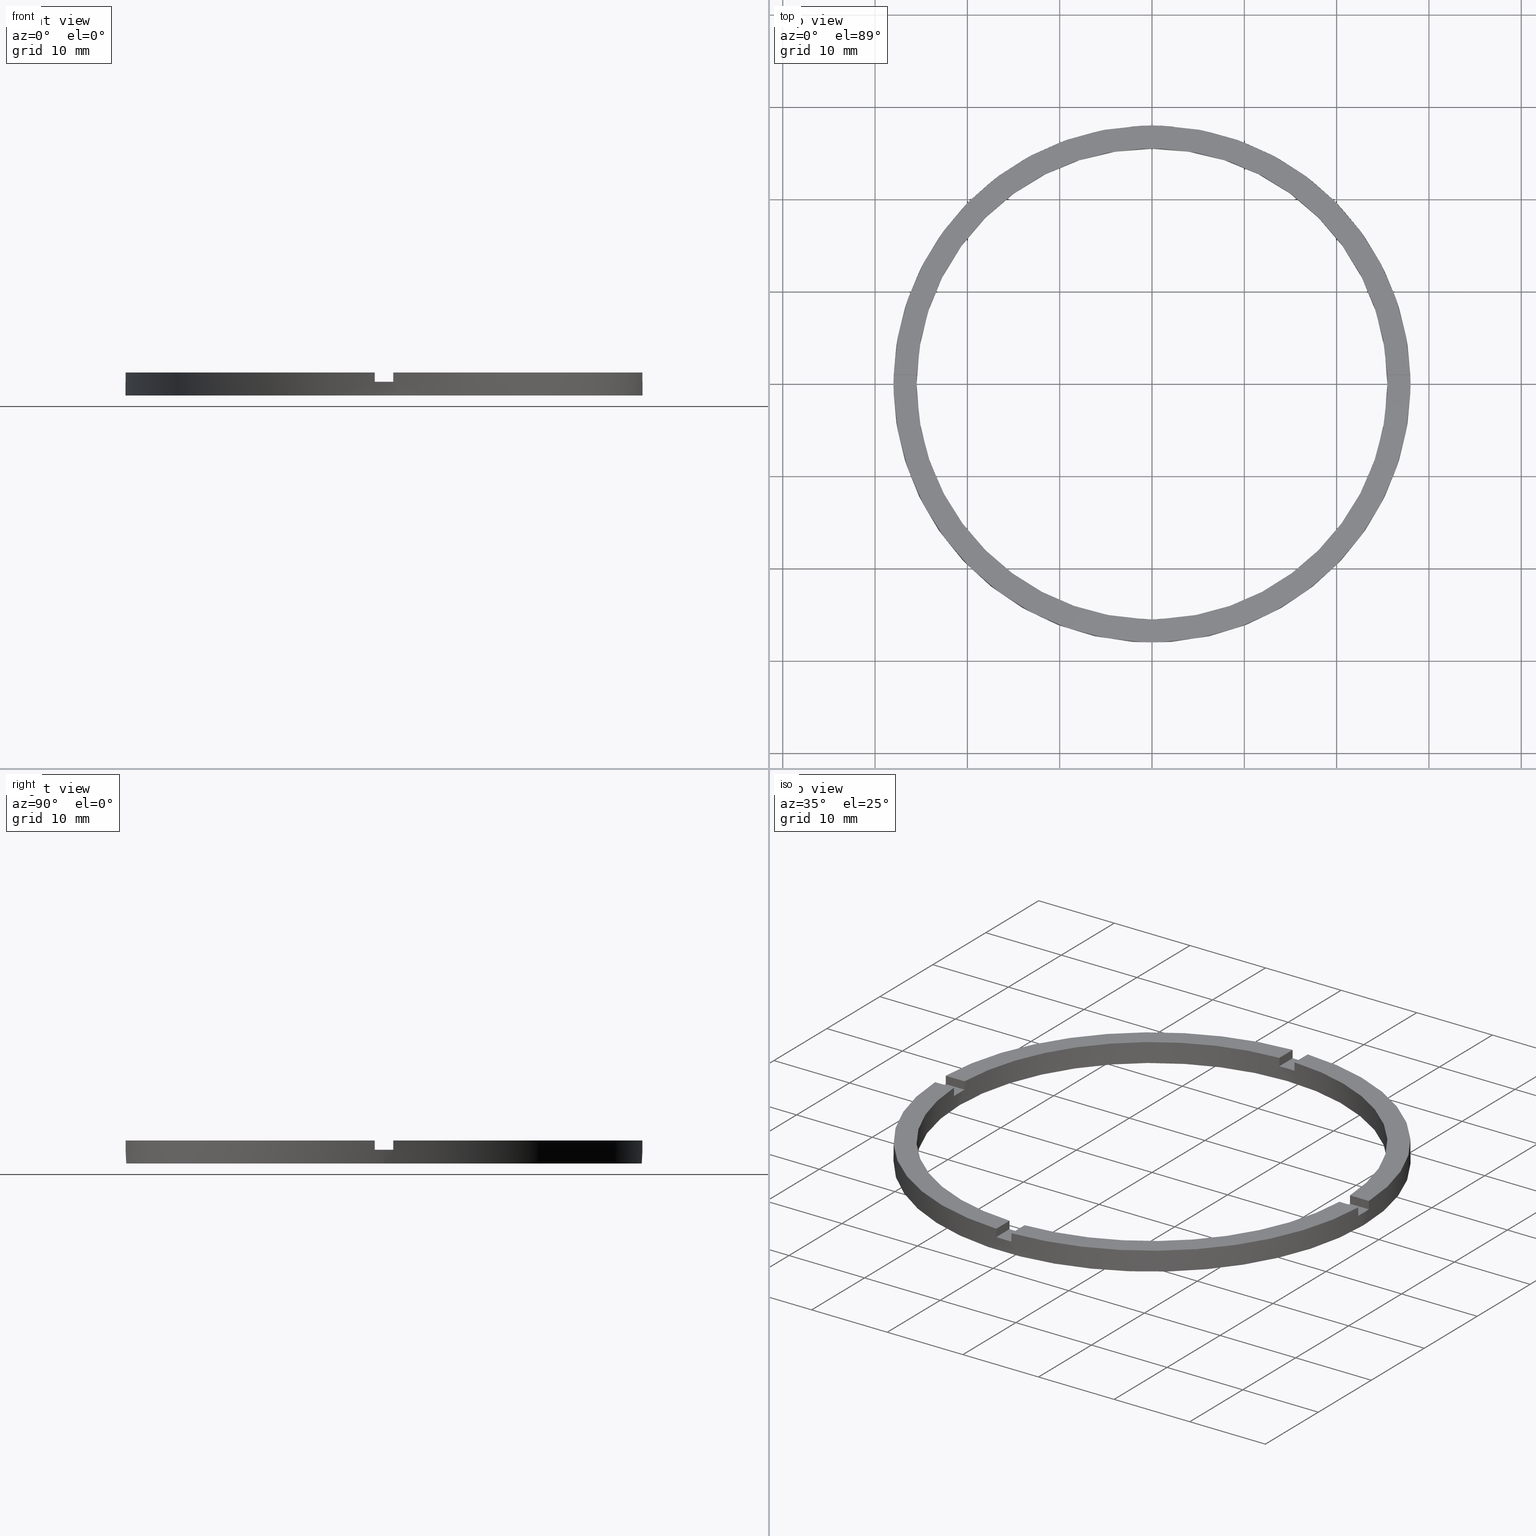
[diagram: canonical four-view strip — front | top / right | iso, engineering-drawing reading convention]
A machine part, canonical four-view strip (front | top / right | iso — engineering-drawing reading convention). The complete STEP part file that produces these views, byte-faithful:
ISO-10303-21;
HEADER;
FILE_DESCRIPTION (( 'STEP AP203' ),
    '1' );
FILE_NAME ('514117.step',
    '2024-12-26T02:39:08',
    ( 'MSI' ),
    ( '' ),
    'SwSTEP 2.0',
    'SolidWorks 2020',
    '' );
FILE_SCHEMA (( 'CONFIG_CONTROL_DESIGN' ));
ENDSEC;

DATA;
#1 = CC_DESIGN_PERSON_AND_ORGANIZATION_ASSIGNMENT ( #137, #215, ( #351 ) ) ;
#2 = DIRECTION ( 'NONE',  ( 1.000000000000000000, 0.000000000000000000, 0.000000000000000000 ) ) ;
#3 = EDGE_CURVE ( 'NONE', #620, #84, #571, .T. ) ;
#4 = DIRECTION ( 'NONE',  ( 0.000000000000000000, 1.000000000000000000, 0.000000000000000000 ) ) ;
#5 = CARTESIAN_POINT ( 'NONE',  ( -27.98213715926644696, 0.9999999999999731326, 2.500000000000000000 ) ) ;
#6 = PLANE ( 'NONE',  #172 ) ;
#7 = AXIS2_PLACEMENT_3D ( 'NONE', #290, #186, #195 ) ;
#8 = DIRECTION ( 'NONE',  ( 0.000000000000000000, 1.000000000000000000, 0.000000000000000000 ) ) ;
#9 = DIRECTION ( 'NONE',  ( -0.000000000000000000, 0.000000000000000000, 1.000000000000000000 ) ) ;
#10 = ADVANCED_FACE ( 'NONE', ( #337 ), #433, .T. ) ;
#11 = EDGE_CURVE ( 'NONE', #214, #712, #58, .T. ) ;
#12 = DIRECTION ( 'NONE',  ( -0.000000000000000000, -0.000000000000000000, -1.000000000000000000 ) ) ;
#13 = EDGE_CURVE ( 'NONE', #371, #772, #80, .T. ) ;
#14 = DIRECTION ( 'NONE',  ( -1.000000000000000000, -4.336808689942018352E-17, -0.000000000000000000 ) ) ;
#15 = PLANE ( 'NONE',  #416 ) ;
#16 = PERSON_AND_ORGANIZATION_ROLE ( 'design_owner' ) ;
#17 = AXIS2_PLACEMENT_3D ( 'NONE', #37, #367, #724 ) ;
#18 = PLANE ( 'NONE',  #514 ) ;
#19 = ADVANCED_FACE ( 'NONE', ( #332 ), #557, .T. ) ;
#20 = CARTESIAN_POINT ( 'NONE',  ( 0.000000000000000000, 0.000000000000000000, 2.500000000000000000 ) ) ;
#21 = EDGE_CURVE ( 'NONE', #576, #712, #593, .T. ) ;
#22 = PLANE ( 'NONE',  #756 ) ;
#23 = AXIS2_PLACEMENT_3D ( 'NONE', #402, #468, #116 ) ;
#24 = CC_DESIGN_DATE_AND_TIME_ASSIGNMENT ( #405, #330, ( #351 ) ) ;
#25 = DESIGN_CONTEXT ( 'detailed design', #645, 'design' ) ;
#26 = EDGE_CURVE ( 'NONE', #631, #749, #599, .T. ) ;
#27 = ADVANCED_FACE ( 'NONE', ( #340 ), #15, .T. ) ;
#28 = DIRECTION ( 'NONE',  ( -1.000000000000000000, 0.000000000000000000, 0.000000000000000000 ) ) ;
#29 = EDGE_CURVE ( 'NONE', #214, #211, #572, .T. ) ;
#30 = APPLICATION_PROTOCOL_DEFINITION ( 'international standard', 'config_control_design', 1994, #645 ) ;
#31 = DIRECTION ( 'NONE',  ( 1.000000000000000000, 0.000000000000000000, -0.000000000000000000 ) ) ;
#32 = EDGE_CURVE ( 'NONE', #334, #71, #336, .T. ) ;
#33 = AXIS2_PLACEMENT_3D ( 'NONE', #208, #392, #390 ) ;
#34 = CARTESIAN_POINT ( 'NONE',  ( 0.000000000000000000, 0.000000000000000000, 2.500000000000000000 ) ) ;
#35 = ORIENTED_EDGE ( 'NONE', *, *, #118, .F. ) ;
#36 = AXIS2_PLACEMENT_3D ( 'NONE', #399, #139, #763 ) ;
#37 = CARTESIAN_POINT ( 'NONE',  ( 0.000000000000000000, 0.000000000000000000, 0.000000000000000000 ) ) ;
#38 = CARTESIAN_POINT ( 'NONE',  ( -25.50000000000000000, 0.000000000000000000, 2.500000000000000000 ) ) ;
#39 = CARTESIAN_POINT ( 'NONE',  ( 25.48038461248181719, 0.9999999999998427924, 2.500000000000000000 ) ) ;
#40 = CARTESIAN_POINT ( 'NONE',  ( -18.00000000000018474, -1.000000000000025091, 2.500000000000000000 ) ) ;
#41 = CARTESIAN_POINT ( 'NONE',  ( 0.9999999999998389066, -18.00000000000018119, 1.500000000000000000 ) ) ;
#42 = CARTESIAN_POINT ( 'NONE',  ( 0.9999999999999735767, 25.48038461248181363, 1.500000000000000000 ) ) ;
#43 = CARTESIAN_POINT ( 'NONE',  ( -1.000000000000159872, -27.98213715926643985, 2.500000000000000000 ) ) ;
#44 = ORIENTED_EDGE ( 'NONE', *, *, #707, .F. ) ;
#45 = ORIENTED_EDGE ( 'NONE', *, *, #152, .T. ) ;
#46 = CARTESIAN_POINT ( 'NONE',  ( 0.000000000000000000, 0.000000000000000000, 2.500000000000000000 ) ) ;
#47 = DIRECTION ( 'NONE',  ( 0.000000000000000000, 0.000000000000000000, 1.000000000000000000 ) ) ;
#48 = AXIS2_PLACEMENT_3D ( 'NONE', #495, #649, #718 ) ;
#49 = VECTOR ( 'NONE', #564, 1000.000000000000000 ) ;
#50 = DIRECTION ( 'NONE',  ( 1.000000000000000000, 0.000000000000000000, 0.000000000000000000 ) ) ;
#51 = DIRECTION ( 'NONE',  ( 4.336808689942018352E-17, -1.000000000000000000, 0.000000000000000000 ) ) ;
#52 = ORIENTED_EDGE ( 'NONE', *, *, #29, .F. ) ;
#53 = EDGE_CURVE ( 'NONE', #474, #604, #588, .T. ) ;
#54 = VERTEX_POINT ( 'NONE', #112 ) ;
#55 = ORIENTED_EDGE ( 'NONE', *, *, #678, .F. ) ;
#56 = DIRECTION ( 'NONE',  ( 1.000000000000000000, 4.336808689942018352E-17, 0.000000000000000000 ) ) ;
#57 = ORIENTED_EDGE ( 'NONE', *, *, #26, .F. ) ;
#58 = CIRCLE ( 'NONE', #171, 25.50000000000000000 ) ;
#59 = PLANE ( 'NONE',  #700 ) ;
#60 = APPROVAL ( #704, 'δָ��' ) ;
#61 = CIRCLE ( 'NONE', #633, 28.00000000000000000 ) ;
#62 = ORIENTED_EDGE ( 'NONE', *, *, #431, .T. ) ;
#63 = VERTEX_POINT ( 'NONE', #360 ) ;
#64 = ORIENTED_EDGE ( 'NONE', *, *, #562, .T. ) ;
#65 = DIRECTION ( 'NONE',  ( 1.000000000000000000, 0.000000000000000000, 0.000000000000000000 ) ) ;
#66 = CIRCLE ( 'NONE', #212, 25.50000000000000000 ) ;
#67 = EDGE_LOOP ( 'NONE', ( #364, #73, #57, #192 ) ) ;
#68 = VERTEX_POINT ( 'NONE', #501 ) ;
#69 = VECTOR ( 'NONE', #739, 1000.000000000000000 ) ;
#70 = DIRECTION ( 'NONE',  ( 1.000000000000000000, 0.000000000000000000, -0.000000000000000000 ) ) ;
#71 = VERTEX_POINT ( 'NONE', #551 ) ;
#72 = LINE ( 'NONE', #388, #605 ) ;
#73 = ORIENTED_EDGE ( 'NONE', *, *, #562, .F. ) ;
#74 = EDGE_CURVE ( 'NONE', #334, #231, #76, .T. ) ;
#75 = VERTEX_POINT ( 'NONE', #408 ) ;
#76 = CIRCLE ( 'NONE', #295, 25.50000000000000000 ) ;
#77 = ORIENTED_EDGE ( 'NONE', *, *, #475, .T. ) ;
#78 = DIRECTION ( 'NONE',  ( -1.000000000000000000, -4.336808689942018352E-17, 0.000000000000000000 ) ) ;
#79 = VECTOR ( 'NONE', #623, 1000.000000000000000 ) ;
#80 = LINE ( 'NONE', #507, #348 ) ;
#81 = CIRCLE ( 'NONE', #349, 25.50000000000000000 ) ;
#82 = CARTESIAN_POINT ( 'NONE',  ( -1.000000000000026423, 25.48038461248181008, 2.500000000000000000 ) ) ;
#83 = APPROVAL_STATUS ( 'not_yet_approved' ) ;
#84 = VERTEX_POINT ( 'NONE', #5 ) ;
#85 = LINE ( 'NONE', #652, #341 ) ;
#86 = EDGE_CURVE ( 'NONE', #631, #604, #344, .T. ) ;
#87 = CIRCLE ( 'NONE', #535, 28.00000000000000000 ) ;
#88 = CARTESIAN_POINT ( 'NONE',  ( -18.00000000000018474, 0.9999999999999749090, 1.500000000000000000 ) ) ;
#89 = ORIENTED_EDGE ( 'NONE', *, *, #29, .T. ) ;
#90 = VECTOR ( 'NONE', #287, 1000.000000000000000 ) ;
#91 = ORIENTED_EDGE ( 'NONE', *, *, #773, .T. ) ;
#92 = CIRCLE ( 'NONE', #146, 28.00000000000000000 ) ;
#93 = DIRECTION ( 'NONE',  ( 0.000000000000000000, 0.000000000000000000, 1.000000000000000000 ) ) ;
#94 = ORIENTED_EDGE ( 'NONE', *, *, #525, .F. ) ;
#95 = VECTOR ( 'NONE', #115, 1000.000000000000000 ) ;
#96 = ORIENTED_EDGE ( 'NONE', *, *, #13, .F. ) ;
#97 = VERTEX_POINT ( 'NONE', #779 ) ;
#98 = ORIENTED_EDGE ( 'NONE', *, *, #319, .T. ) ;
#99 = ORIENTED_EDGE ( 'NONE', *, *, #74, .T. ) ;
#100 = ORIENTED_EDGE ( 'NONE', *, *, #460, .F. ) ;
#101 = ORIENTED_EDGE ( 'NONE', *, *, #775, .F. ) ;
#102 = DIRECTION ( 'NONE',  ( 1.000000000000000000, 0.000000000000000000, 0.000000000000000000 ) ) ;
#103 = AXIS2_PLACEMENT_3D ( 'NONE', #667, #752, #70 ) ;
#104 = AXIS2_PLACEMENT_3D ( 'NONE', #239, #280, #2 ) ;
#105 = ORIENTED_EDGE ( 'NONE', *, *, #188, .F. ) ;
#106 = ORIENTED_EDGE ( 'NONE', *, *, #319, .F. ) ;
#107 = EDGE_CURVE ( 'NONE', #182, #474, #85, .T. ) ;
#108 = VERTEX_POINT ( 'NONE', #249 ) ;
#109 = ORIENTED_EDGE ( 'NONE', *, *, #53, .T. ) ;
#110 = CARTESIAN_POINT ( 'NONE',  ( -1.000000000000026423, 18.00000000000000355, 2.500000000000000000 ) ) ;
#111 = DIRECTION ( 'NONE',  ( 1.000000000000000000, 0.000000000000000000, 0.000000000000000000 ) ) ;
#112 = CARTESIAN_POINT ( 'NONE',  ( -27.98213715926644340, -1.000000000000026867, 2.500000000000000000 ) ) ;
#113 = CARTESIAN_POINT ( 'NONE',  ( 25.48038461248181719, 0.9999999999998427924, 2.500000000000000000 ) ) ;
#114 = CARTESIAN_POINT ( 'NONE',  ( 0.000000000000000000, 0.000000000000000000, 2.500000000000000000 ) ) ;
#115 = DIRECTION ( 'NONE',  ( 1.000000000000000000, 1.734723475976807341E-16, -0.000000000000000000 ) ) ;
#116 = DIRECTION ( 'NONE',  ( -1.000000000000000000, 0.000000000000000000, 0.000000000000000000 ) ) ;
#117 = CARTESIAN_POINT ( 'NONE',  ( 0.9999999999999735767, 18.00000000000000355, 2.500000000000000000 ) ) ;
#118 = EDGE_CURVE ( 'NONE', #631, #576, #325, .T. ) ;
#119 = PLANE ( 'NONE',  #251 ) ;
#120 = DIRECTION ( 'NONE',  ( 1.000000000000000000, 1.734723475976807341E-16, -0.000000000000000000 ) ) ;
#121 = DIRECTION ( 'NONE',  ( 1.000000000000000000, -0.000000000000000000, 0.000000000000000000 ) ) ;
#122 = CARTESIAN_POINT ( 'NONE',  ( 27.98213715926645051, 0.9999999999998430145, 2.500000000000000000 ) ) ;
#123 = EDGE_CURVE ( 'NONE', #108, #457, #333, .T. ) ;
#124 = DIRECTION ( 'NONE',  ( -1.000000000000000000, -1.734723475976807341E-16, 0.000000000000000000 ) ) ;
#125 = LOCAL_TIME ( 10, 39, 8.000000000000000000, #135 ) ;
#126 = AXIS2_PLACEMENT_3D ( 'NONE', #657, #425, #510 ) ;
#127 = AXIS2_PLACEMENT_3D ( 'NONE', #46, #259, #261 ) ;
#128 = AXIS2_PLACEMENT_3D ( 'NONE', #301, #387, #432 ) ;
#129 = CARTESIAN_POINT ( 'NONE',  ( 0.000000000000000000, 0.000000000000000000, 2.500000000000000000 ) ) ;
#130 = CARTESIAN_POINT ( 'NONE',  ( 0.9999999999998389066, -18.00000000000018119, 2.500000000000000000 ) ) ;
#131 = COORDINATED_UNIVERSAL_TIME_OFFSET ( 8, 0, .AHEAD. ) ;
#132 = ADVANCED_FACE ( 'NONE', ( #609 ), #119, .F. ) ;
#133 = CARTESIAN_POINT ( 'NONE',  ( 0.9999999999998397948, -25.48038461248181719, 2.500000000000000000 ) ) ;
#134 = DIRECTION ( 'NONE',  ( -0.000000000000000000, -0.000000000000000000, -1.000000000000000000 ) ) ;
#135 = COORDINATED_UNIVERSAL_TIME_OFFSET ( 8, 0, .AHEAD. ) ;
#136 = EDGE_CURVE ( 'NONE', #75, #71, #590, .T. ) ;
#137 = PERSON_AND_ORGANIZATION ( #281, #473 ) ;
#138 = DATE_AND_TIME ( #407, #664 ) ;
#139 = DIRECTION ( 'NONE',  ( 0.000000000000000000, 0.000000000000000000, 1.000000000000000000 ) ) ;
#140 = CARTESIAN_POINT ( 'NONE',  ( -1.000000000000160316, -25.48038461248180653, 1.500000000000000000 ) ) ;
#141 = ADVANCED_FACE ( 'NONE', ( #595 ), #59, .F. ) ;
#142 = EDGE_CURVE ( 'NONE', #211, #772, #602, .T. ) ;
#143 = DIRECTION ( 'NONE',  ( -0.000000000000000000, -0.000000000000000000, -1.000000000000000000 ) ) ;
#144 = APPROVAL_PERSON_ORGANIZATION ( #663, #60, #270 ) ;
#145 = CARTESIAN_POINT ( 'NONE',  ( -25.48038461248181008, -1.000000000000026423, 2.500000000000000000 ) ) ;
#146 = AXIS2_PLACEMENT_3D ( 'NONE', #114, #245, #783 ) ;
#147 = PRODUCT_RELATED_PRODUCT_CATEGORY ( 'detail', '', ( #250 ) ) ;
#148 = LINE ( 'NONE', #117, #715 ) ;
#149 = CARTESIAN_POINT ( 'NONE',  ( 0.000000000000000000, 0.000000000000000000, 0.000000000000000000 ) ) ;
#150 = VECTOR ( 'NONE', #297, 1000.000000000000000 ) ;
#151 = LINE ( 'NONE', #745, #451 ) ;
#152 = EDGE_CURVE ( 'NONE', #741, #242, #72, .T. ) ;
#153 = DIRECTION ( 'NONE',  ( 0.000000000000000000, 0.000000000000000000, 1.000000000000000000 ) ) ;
#154 = VECTOR ( 'NONE', #714, 1000.000000000000000 ) ;
#155 = VECTOR ( 'NONE', #8, 1000.000000000000000 ) ;
#156 = FACE_OUTER_BOUND ( 'NONE', #515, .T. ) ;
#157 = FACE_OUTER_BOUND ( 'NONE', #321, .T. ) ;
#158 = DIRECTION ( 'NONE',  ( -0.000000000000000000, -0.000000000000000000, -1.000000000000000000 ) ) ;
#159 = VECTOR ( 'NONE', #658, 1000.000000000000000 ) ;
#160 = CIRCLE ( 'NONE', #470, 25.50000000000000000 ) ;
#161 = AXIS2_PLACEMENT_3D ( 'NONE', #648, #232, #277 ) ;
#162 = CARTESIAN_POINT ( 'NONE',  ( 0.000000000000000000, 0.000000000000000000, 1.500000000000000000 ) ) ;
#163 = CC_DESIGN_PERSON_AND_ORGANIZATION_ASSIGNMENT ( #206, #16, ( #250 ) ) ;
#164 = CIRCLE ( 'NONE', #304, 25.50000000000000000 ) ;
#165 = FACE_OUTER_BOUND ( 'NONE', #200, .T. ) ;
#166 = CARTESIAN_POINT ( 'NONE',  ( 0.000000000000000000, 0.000000000000000000, 1.500000000000000000 ) ) ;
#167 = DIRECTION ( 'NONE',  ( -0.000000000000000000, -0.000000000000000000, -1.000000000000000000 ) ) ;
#168 = LINE ( 'NONE', #39, #440 ) ;
#169 = ORIENTED_EDGE ( 'NONE', *, *, #636, .F. ) ;
#170 = CIRCLE ( 'NONE', #161, 28.00000000000000000 ) ;
#171 = AXIS2_PLACEMENT_3D ( 'NONE', #299, #760, #415 ) ;
#172 = AXIS2_PLACEMENT_3D ( 'NONE', #162, #651, #662 ) ;
#173 = CYLINDRICAL_SURFACE ( 'NONE', #279, 25.50000000000000000 ) ;
#174 = DIRECTION ( 'NONE',  ( 0.000000000000000000, 0.000000000000000000, 1.000000000000000000 ) ) ;
#175 = CIRCLE ( 'NONE', #770, 25.50000000000000000 ) ;
#176 = ORIENTED_EDGE ( 'NONE', *, *, #326, .F. ) ;
#177 = FACE_OUTER_BOUND ( 'NONE', #523, .T. ) ;
#178 = PLANE ( 'NONE',  #643 ) ;
#179 = CIRCLE ( 'NONE', #370, 25.50000000000000000 ) ;
#180 = EDGE_LOOP ( 'NONE', ( #339, #77, #462, #601, #740, #101, #62, #52, #442, #317, #64, #579 ) ) ;
#181 = LINE ( 'NONE', #252, #709 ) ;
#182 = VERTEX_POINT ( 'NONE', #435 ) ;
#183 = DIRECTION ( 'NONE',  ( 0.000000000000000000, 0.000000000000000000, 1.000000000000000000 ) ) ;
#184 = LINE ( 'NONE', #122, #679 ) ;
#185 = ORIENTED_EDGE ( 'NONE', *, *, #13, .T. ) ;
#186 = DIRECTION ( 'NONE',  ( 0.000000000000000000, 0.000000000000000000, 1.000000000000000000 ) ) ;
#187 = CIRCLE ( 'NONE', #274, 28.00000000000000000 ) ;
#188 = EDGE_CURVE ( 'NONE', #449, #68, #81, .T. ) ;
#189 = FACE_OUTER_BOUND ( 'NONE', #759, .T. ) ;
#190 = EDGE_LOOP ( 'NONE', ( #314, #758, #363, #513, #44, #355 ) ) ;
#191 = VECTOR ( 'NONE', #120, 1000.000000000000000 ) ;
#192 = ORIENTED_EDGE ( 'NONE', *, *, #86, .T. ) ;
#193 = CIRCLE ( 'NONE', #33, 28.00000000000000000 ) ;
#194 = ORIENTED_EDGE ( 'NONE', *, *, #475, .F. ) ;
#195 = DIRECTION ( 'NONE',  ( 1.000000000000000000, 0.000000000000000000, 0.000000000000000000 ) ) ;
#196 = LINE ( 'NONE', #421, #150 ) ;
#197 = VERTEX_POINT ( 'NONE', #386 ) ;
#198 = DIRECTION ( 'NONE',  ( 0.000000000000000000, 0.000000000000000000, 1.000000000000000000 ) ) ;
#199 = PLANE ( 'NONE',  #391 ) ;
#200 = EDGE_LOOP ( 'NONE', ( #500, #581, #230, #560, #516, #687, #185, #492, #312, #511, #292, #238 ) ) ;
#201 = LOCAL_TIME ( 10, 39, 8.000000000000000000, #720 ) ;
#202 = ADVANCED_FACE ( 'NONE', ( #327 ), #199, .T. ) ;
#203 = EDGE_LOOP ( 'NONE', ( #628, #241, #91, #379 ) ) ;
#204 = DIRECTION ( 'NONE',  ( 0.000000000000000000, 0.000000000000000000, 1.000000000000000000 ) ) ;
#205 = ORIENTED_EDGE ( 'NONE', *, *, #3, .T. ) ;
#206 = PERSON_AND_ORGANIZATION ( #281, #473 ) ;
#207 = APPROVAL_DATE_TIME ( #471, #398 ) ;
#208 = CARTESIAN_POINT ( 'NONE',  ( 0.000000000000000000, 0.000000000000000000, 0.000000000000000000 ) ) ;
#209 = LOCAL_TIME ( 10, 39, 8.000000000000000000, #476 ) ;
#210 = ORIENTED_EDGE ( 'NONE', *, *, #642, .F. ) ;
#211 = VERTEX_POINT ( 'NONE', #539 ) ;
#212 = AXIS2_PLACEMENT_3D ( 'NONE', #149, #458, #530 ) ;
#213 = CALENDAR_DATE ( 2024, 26, 12 ) ;
#214 = VERTEX_POINT ( 'NONE', #140 ) ;
#215 = PERSON_AND_ORGANIZATION_ROLE ( 'classification_officer' ) ;
#216 = EDGE_LOOP ( 'NONE', ( #235, #381, #488, #629 ) ) ;
#217 = APPROVAL_PERSON_ORGANIZATION ( #485, #275, #533 ) ;
#218 = ORIENTED_EDGE ( 'NONE', *, *, #420, .T. ) ;
#219 = ORIENTED_EDGE ( 'NONE', *, *, #142, .T. ) ;
#220 = ORIENTED_EDGE ( 'NONE', *, *, #673, .F. ) ;
#221 = EDGE_CURVE ( 'NONE', #54, #490, #347, .T. ) ;
#222 = ADVANCED_FACE ( 'NONE', ( #607 ), #22, .T. ) ;
#223 = ORIENTED_EDGE ( 'NONE', *, *, #300, .T. ) ;
#224 = ORIENTED_EDGE ( 'NONE', *, *, #661, .T. ) ;
#225 = ORIENTED_EDGE ( 'NONE', *, *, #265, .T. ) ;
#226 = VERTEX_POINT ( 'NONE', #463 ) ;
#227 = ORIENTED_EDGE ( 'NONE', *, *, #269, .T. ) ;
#228 = AXIS2_PLACEMENT_3D ( 'NONE', #578, #497, #28 ) ;
#229 = DIRECTION ( 'NONE',  ( -1.000000000000000000, -1.301042606982605567E-16, 0.000000000000000000 ) ) ;
#230 = ORIENTED_EDGE ( 'NONE', *, *, #537, .T. ) ;
#231 = VERTEX_POINT ( 'NONE', #282 ) ;
#232 = DIRECTION ( 'NONE',  ( 0.000000000000000000, 0.000000000000000000, 1.000000000000000000 ) ) ;
#233 = ORIENTED_EDGE ( 'NONE', *, *, #506, .T. ) ;
#234 = DIRECTION ( 'NONE',  ( -0.000000000000000000, -0.000000000000000000, -1.000000000000000000 ) ) ;
#235 = ORIENTED_EDGE ( 'NONE', *, *, #293, .T. ) ;
#236 = ORIENTED_EDGE ( 'NONE', *, *, #21, .T. ) ;
#237 = EDGE_CURVE ( 'NONE', #371, #576, #87, .T. ) ;
#238 = ORIENTED_EDGE ( 'NONE', *, *, #678, .T. ) ;
#239 = CARTESIAN_POINT ( 'NONE',  ( 0.000000000000000000, 0.000000000000000000, 2.500000000000000000 ) ) ;
#240 = ORIENTED_EDGE ( 'NONE', *, *, #769, .F. ) ;
#241 = ORIENTED_EDGE ( 'NONE', *, *, #603, .T. ) ;
#242 = VERTEX_POINT ( 'NONE', #683 ) ;
#243 = CARTESIAN_POINT ( 'NONE',  ( 0.000000000000000000, 0.000000000000000000, 2.500000000000000000 ) ) ;
#244 = DIRECTION ( 'NONE',  ( 1.301042606982605567E-16, -1.000000000000000000, 0.000000000000000000 ) ) ;
#245 = DIRECTION ( 'NONE',  ( 0.000000000000000000, 0.000000000000000000, 1.000000000000000000 ) ) ;
#246 = DIRECTION ( 'NONE',  ( 1.000000000000000000, 0.000000000000000000, 0.000000000000000000 ) ) ;
#247 = DIRECTION ( 'NONE',  ( 1.000000000000000000, 0.000000000000000000, 0.000000000000000000 ) ) ;
#248 = DIRECTION ( 'NONE',  ( 0.000000000000000000, 0.000000000000000000, 1.000000000000000000 ) ) ;
#249 = CARTESIAN_POINT ( 'NONE',  ( -28.00000000000000000, 0.000000000000000000, 1.500000000000000000 ) ) ;
#250 = PRODUCT ( '514117', '514117', '', ( #444 ) ) ;
#251 = AXIS2_PLACEMENT_3D ( 'NONE', #41, #291, #375 ) ;
#252 = CARTESIAN_POINT ( 'NONE',  ( 0.9999999999999735767, 25.48038461248181363, 2.500000000000000000 ) ) ;
#253 = CARTESIAN_POINT ( 'NONE',  ( 18.00000000000000000, -1.000000000000157430, 1.500000000000000000 ) ) ;
#254 = PRODUCT_DEFINITION_FORMATION_WITH_SPECIFIED_SOURCE ( '�κ�', '', #250, .NOT_KNOWN. ) ;
#255 = DIRECTION ( 'NONE',  ( 1.000000000000000000, 0.000000000000000000, 0.000000000000000000 ) ) ;
#256 = CARTESIAN_POINT ( 'NONE',  ( 27.98213715926643985, -1.000000000000156986, 2.500000000000000000 ) ) ;
#257 = CARTESIAN_POINT ( 'NONE',  ( 0.9999999999999735767, 18.00000000000000355, 1.500000000000000000 ) ) ;
#258 = LINE ( 'NONE', #38, #531 ) ;
#259 = DIRECTION ( 'NONE',  ( 0.000000000000000000, 0.000000000000000000, 1.000000000000000000 ) ) ;
#260 = CARTESIAN_POINT ( 'NONE',  ( 0.000000000000000000, 0.000000000000000000, 0.000000000000000000 ) ) ;
#261 = DIRECTION ( 'NONE',  ( 1.000000000000000000, 0.000000000000000000, -0.000000000000000000 ) ) ;
#262 = LINE ( 'NONE', #480, #782 ) ;
#263 = CIRCLE ( 'NONE', #757, 28.00000000000000000 ) ;
#264 = CARTESIAN_POINT ( 'NONE',  ( 0.9999999999998402389, -27.98213715926645051, 1.500000000000000000 ) ) ;
#265 = EDGE_CURVE ( 'NONE', #502, #626, #66, .T. ) ;
#266 = ADVANCED_FACE ( 'NONE', ( #353 ), #18, .T. ) ;
#267 = ADVANCED_FACE ( 'NONE', ( #612 ), #644, .F. ) ;
#268 = DIRECTION ( 'NONE',  ( -1.301042606982605567E-16, 1.000000000000000000, -0.000000000000000000 ) ) ;
#269 = EDGE_CURVE ( 'NONE', #749, #712, #358, .T. ) ;
#270 = APPROVAL_ROLE ( '' ) ;
#271 = CARTESIAN_POINT ( 'NONE',  ( 27.98213715926643985, -1.000000000000156986, 1.500000000000000000 ) ) ;
#272 = DIRECTION ( 'NONE',  ( 1.000000000000000000, 0.000000000000000000, 0.000000000000000000 ) ) ;
#273 = ADVANCED_FACE ( 'NONE', ( #356, #613 ), #543, .F. ) ;
#274 = AXIS2_PLACEMENT_3D ( 'NONE', #284, #365, #650 ) ;
#275 = APPROVAL ( #83, 'δָ��' ) ;
#276 = APPROVAL_STATUS ( 'not_yet_approved' ) ;
#277 = DIRECTION ( 'NONE',  ( 1.000000000000000000, 0.000000000000000000, 0.000000000000000000 ) ) ;
#278 = AXIS2_PLACEMENT_3D ( 'NONE', #670, #198, #255 ) ;
#279 = AXIS2_PLACEMENT_3D ( 'NONE', #366, #731, #380 ) ;
#280 = DIRECTION ( 'NONE',  ( 0.000000000000000000, 0.000000000000000000, 1.000000000000000000 ) ) ;
#281 = PERSON ( 'δָ��', 'δָ��', 'δָ��', ('δָ��'), ('δָ��'), ('δָ��') ) ;
#282 = CARTESIAN_POINT ( 'NONE',  ( -25.48038461248181363, 0.9999999999999735767, 2.500000000000000000 ) ) ;
#283 = DIRECTION ( 'NONE',  ( 1.000000000000000000, 4.336808689942018352E-17, 0.000000000000000000 ) ) ;
#284 = CARTESIAN_POINT ( 'NONE',  ( 0.000000000000000000, 0.000000000000000000, 1.500000000000000000 ) ) ;
#285 = CARTESIAN_POINT ( 'NONE',  ( 0.9999999999998397948, -25.48038461248181719, 2.500000000000000000 ) ) ;
#286 = AXIS2_PLACEMENT_3D ( 'NONE', #606, #563, #78 ) ;
#287 = DIRECTION ( 'NONE',  ( -0.000000000000000000, -0.000000000000000000, -1.000000000000000000 ) ) ;
#288 = EDGE_CURVE ( 'NONE', #54, #772, #92, .T. ) ;
#289 = CARTESIAN_POINT ( 'NONE',  ( -1.000000000000026423, 25.48038461248181008, 2.500000000000000000 ) ) ;
#290 = CARTESIAN_POINT ( 'NONE',  ( 0.000000000000000000, 0.000000000000000000, 0.000000000000000000 ) ) ;
#291 = DIRECTION ( 'NONE',  ( 1.000000000000000000, 1.301042606982605567E-16, 0.000000000000000000 ) ) ;
#292 = ORIENTED_EDGE ( 'NONE', *, *, #123, .T. ) ;
#293 = EDGE_CURVE ( 'NONE', #54, #324, #614, .T. ) ;
#294 = DIRECTION ( 'NONE',  ( 0.000000000000000000, 0.000000000000000000, 1.000000000000000000 ) ) ;
#295 = AXIS2_PLACEMENT_3D ( 'NONE', #611, #47, #548 ) ;
#296 = CARTESIAN_POINT ( 'NONE',  ( 28.00000000000000000, 3.429011037612589276E-15, 1.500000000000000000 ) ) ;
#297 = DIRECTION ( 'NONE',  ( -0.000000000000000000, -0.000000000000000000, -1.000000000000000000 ) ) ;
#298 = PRODUCT_DEFINITION ( 'δ֪', '', #254, #25 ) ;
#299 = CARTESIAN_POINT ( 'NONE',  ( 0.000000000000000000, 0.000000000000000000, 1.500000000000000000 ) ) ;
#300 = EDGE_CURVE ( 'NONE', #108, #490, #61, .T. ) ;
#301 = CARTESIAN_POINT ( 'NONE',  ( -18.00000000000018474, -1.000000000000025091, 1.500000000000000000 ) ) ;
#302 = DIRECTION ( 'NONE',  ( 0.000000000000000000, 0.000000000000000000, 1.000000000000000000 ) ) ;
#303 = ADVANCED_FACE ( 'NONE', ( #329 ), #774, .F. ) ;
#304 = AXIS2_PLACEMENT_3D ( 'NONE', #34, #153, #247 ) ;
#305 = CC_DESIGN_APPROVAL ( #275, ( #254 ) ) ;
#306 = CARTESIAN_POINT ( 'NONE',  ( 27.98213715926645051, 0.9999999999998430145, 2.500000000000000000 ) ) ;
#307 = EDGE_CURVE ( 'NONE', #620, #334, #443, .T. ) ;
#308 = ORIENTED_EDGE ( 'NONE', *, *, #288, .T. ) ;
#309 = AXIS2_PLACEMENT_3D ( 'NONE', #546, #541, #65 ) ;
#310 = CARTESIAN_POINT ( 'NONE',  ( 18.00000000000000000, 0.9999999999998425704, 1.500000000000000000 ) ) ;
#311 = VECTOR ( 'NONE', #268, 1000.000000000000000 ) ;
#312 = ORIENTED_EDGE ( 'NONE', *, *, #221, .T. ) ;
#313 = CARTESIAN_POINT ( 'NONE',  ( 0.9999999999998389066, -18.00000000000018119, 1.500000000000000000 ) ) ;
#314 = ORIENTED_EDGE ( 'NONE', *, *, #404, .T. ) ;
#315 = DIRECTION ( 'NONE',  ( 0.000000000000000000, 0.000000000000000000, 1.000000000000000000 ) ) ;
#316 = ADVANCED_FACE ( 'NONE', ( #434 ), #685, .F. ) ;
#317 = ORIENTED_EDGE ( 'NONE', *, *, #269, .F. ) ;
#318 = ORIENTED_EDGE ( 'NONE', *, *, #710, .F. ) ;
#319 = EDGE_CURVE ( 'NONE', #242, #108, #682, .T. ) ;
#320 = AXIS2_PLACEMENT_3D ( 'NONE', #253, #51, #56 ) ;
#321 = EDGE_LOOP ( 'NONE', ( #318, #691, #323, #726 ) ) ;
#322 = PERSON_AND_ORGANIZATION_ROLE ( 'creator' ) ;
#323 = ORIENTED_EDGE ( 'NONE', *, *, #769, .T. ) ;
#324 = VERTEX_POINT ( 'NONE', #145 ) ;
#325 = LINE ( 'NONE', #544, #350 ) ;
#326 = EDGE_CURVE ( 'NONE', #625, #197, #697, .T. ) ;
#327 = FACE_OUTER_BOUND ( 'NONE', #466, .T. ) ;
#328 = CLOSED_SHELL ( 'NONE', ( #316, #389, #10, #455, #266, #27, #273, #393, #768, #762, #267, #222, #132, #303, #202, #555, #630, #19, #141, #694, #635 ) ) ;
#329 = FACE_OUTER_BOUND ( 'NONE', #735, .T. ) ;
#330 = DATE_TIME_ROLE ( 'classification_date' ) ;
#331 = DIRECTION ( 'NONE',  ( 1.301042606982605567E-16, -1.000000000000000000, 0.000000000000000000 ) ) ;
#332 = FACE_OUTER_BOUND ( 'NONE', #190, .T. ) ;
#333 = LINE ( 'NONE', #725, #338 ) ;
#334 = VERTEX_POINT ( 'NONE', #289 ) ;
#335 = CARTESIAN_POINT ( 'NONE',  ( 0.000000000000000000, 0.000000000000000000, 1.500000000000000000 ) ) ;
#336 = LINE ( 'NONE', #82, #592 ) ;
#337 = FACE_OUTER_BOUND ( 'NONE', #771, .T. ) ;
#338 = VECTOR ( 'NONE', #167, 1000.000000000000000 ) ;
#339 = ORIENTED_EDGE ( 'NONE', *, *, #707, .T. ) ;
#340 = FACE_OUTER_BOUND ( 'NONE', #377, .T. ) ;
#341 = VECTOR ( 'NONE', #369, 1000.000000000000000 ) ;
#342 = APPLICATION_CONTEXT ( 'configuration controlled 3d designs of mechanical parts and assemblies' ) ;
#343 = CARTESIAN_POINT ( 'NONE',  ( -1.000000000000159872, -27.98213715926643985, 1.500000000000000000 ) ) ;
#344 = CIRCLE ( 'NONE', #48, 28.00000000000000000 ) ;
#345 = ORIENTED_EDGE ( 'NONE', *, *, #460, .T. ) ;
#346 = DIRECTION ( 'NONE',  ( -1.734723475976807341E-16, 1.000000000000000000, 0.000000000000000000 ) ) ;
#347 = LINE ( 'NONE', #647, #586 ) ;
#348 = VECTOR ( 'NONE', #294, 1000.000000000000000 ) ;
#349 = AXIS2_PLACEMENT_3D ( 'NONE', #524, #617, #521 ) ;
#350 = VECTOR ( 'NONE', #589, 1000.000000000000000 ) ;
#351 = SECURITY_CLASSIFICATION ( '', '', #690 ) ;
#352 = EDGE_LOOP ( 'NONE', ( #583, #580, #619, #169 ) ) ;
#353 = FACE_OUTER_BOUND ( 'NONE', #67, .T. ) ;
#354 = CARTESIAN_POINT ( 'NONE',  ( 0.000000000000000000, 0.000000000000000000, 1.500000000000000000 ) ) ;
#355 = ORIENTED_EDGE ( 'NONE', *, *, #529, .T. ) ;
#356 = FACE_OUTER_BOUND ( 'NONE', #591, .T. ) ;
#357 = VERTEX_POINT ( 'NONE', #693 ) ;
#358 = LINE ( 'NONE', #133, #90 ) ;
#359 = EDGE_CURVE ( 'NONE', #382, #71, #160, .T. ) ;
#360 = CARTESIAN_POINT ( 'NONE',  ( 0.9999999999999735767, 27.98213715926644696, 1.500000000000000000 ) ) ;
#361 = VERTEX_POINT ( 'NONE', #271 ) ;
#362 = ORIENTED_EDGE ( 'NONE', *, *, #359, .F. ) ;
#363 = ORIENTED_EDGE ( 'NONE', *, *, #567, .T. ) ;
#364 = ORIENTED_EDGE ( 'NONE', *, *, #53, .F. ) ;
#365 = DIRECTION ( 'NONE',  ( 0.000000000000000000, -0.000000000000000000, 1.000000000000000000 ) ) ;
#366 = CARTESIAN_POINT ( 'NONE',  ( 0.000000000000000000, 0.000000000000000000, 2.500000000000000000 ) ) ;
#367 = DIRECTION ( 'NONE',  ( 0.000000000000000000, 0.000000000000000000, 1.000000000000000000 ) ) ;
#368 = ORIENTED_EDGE ( 'NONE', *, *, #26, .T. ) ;
#369 = DIRECTION ( 'NONE',  ( 0.000000000000000000, 0.000000000000000000, 1.000000000000000000 ) ) ;
#370 = AXIS2_PLACEMENT_3D ( 'NONE', #653, #183, #50 ) ;
#371 = VERTEX_POINT ( 'NONE', #343 ) ;
#372 = CARTESIAN_POINT ( 'NONE',  ( 0.000000000000000000, 0.000000000000000000, 1.500000000000000000 ) ) ;
#373 = CARTESIAN_POINT ( 'NONE',  ( 0.9999999999999735767, 18.00000000000000355, 1.500000000000000000 ) ) ;
#374 = EDGE_LOOP ( 'NONE', ( #98, #223, #233, #94, #498, #45 ) ) ;
#375 = DIRECTION ( 'NONE',  ( -1.301042606982605567E-16, 1.000000000000000000, 0.000000000000000000 ) ) ;
#376 = ORIENTED_EDGE ( 'NONE', *, *, #359, .T. ) ;
#377 = EDGE_LOOP ( 'NONE', ( #618, #732, #616, #308 ) ) ;
#378 = PLANE ( 'NONE',  #286 ) ;
#379 = ORIENTED_EDGE ( 'NONE', *, *, #396, .F. ) ;
#380 = DIRECTION ( 'NONE',  ( -1.000000000000000000, 0.000000000000000000, 0.000000000000000000 ) ) ;
#381 = ORIENTED_EDGE ( 'NONE', *, *, #775, .T. ) ;
#382 = VERTEX_POINT ( 'NONE', #42 ) ;
#383 = ORIENTED_EDGE ( 'NONE', *, *, #642, .T. ) ;
#384 = CARTESIAN_POINT ( 'NONE',  ( -18.00000000000018474, -1.000000000000025091, 1.500000000000000000 ) ) ;
#385 = PLANE ( 'NONE',  #128 ) ;
#386 = CARTESIAN_POINT ( 'NONE',  ( 0.9999999999999735767, 27.98213715926644696, 2.500000000000000000 ) ) ;
#387 = DIRECTION ( 'NONE',  ( 1.734723475976807341E-16, -1.000000000000000000, 0.000000000000000000 ) ) ;
#388 = CARTESIAN_POINT ( 'NONE',  ( -18.00000000000018474, 0.9999999999999749090, 1.500000000000000000 ) ) ;
#389 = ADVANCED_FACE ( 'NONE', ( #177 ), #437, .T. ) ;
#390 = DIRECTION ( 'NONE',  ( 1.000000000000000000, 0.000000000000000000, 0.000000000000000000 ) ) ;
#391 = AXIS2_PLACEMENT_3D ( 'NONE', #429, #9, #272 ) ;
#392 = DIRECTION ( 'NONE',  ( 0.000000000000000000, 0.000000000000000000, 1.000000000000000000 ) ) ;
#393 = ADVANCED_FACE ( 'NONE', ( #165 ), #692, .T. ) ;
#394 = EDGE_CURVE ( 'NONE', #509, #755, #170, .T. ) ;
#395 = APPLICATION_PROTOCOL_DEFINITION ( 'international standard', 'config_control_design', 1994, #342 ) ;
#396 = EDGE_CURVE ( 'NONE', #242, #84, #262, .T. ) ;
#397 = DIRECTION ( 'NONE',  ( -1.301042606982605567E-16, 1.000000000000000000, -0.000000000000000000 ) ) ;
#398 = APPROVAL ( #276, 'δָ��' ) ;
#399 = CARTESIAN_POINT ( 'NONE',  ( 0.000000000000000000, 0.000000000000000000, 0.000000000000000000 ) ) ;
#400 = CARTESIAN_POINT ( 'NONE',  ( 0.000000000000000000, 0.000000000000000000, 2.500000000000000000 ) ) ;
#401 = DIRECTION ( 'NONE',  ( 1.000000000000000000, 0.000000000000000000, -0.000000000000000000 ) ) ;
#402 = CARTESIAN_POINT ( 'NONE',  ( 0.000000000000000000, 0.000000000000000000, 2.500000000000000000 ) ) ;
#403 = DIRECTION ( 'NONE',  ( -1.000000000000000000, -1.734723475976807341E-16, 0.000000000000000000 ) ) ;
#404 = EDGE_CURVE ( 'NONE', #361, #509, #263, .T. ) ;
#405 = DATE_AND_TIME ( #660, #125 ) ;
#406 = CARTESIAN_POINT ( 'NONE',  ( -28.00000000000000000, 0.000000000000000000, 0.000000000000000000 ) ) ;
#407 = CALENDAR_DATE ( 2024, 26, 12 ) ;
#408 = CARTESIAN_POINT ( 'NONE',  ( -1.000000000000026423, 27.98213715926644340, 1.500000000000000000 ) ) ;
#409 = SHAPE_DEFINITION_REPRESENTATION ( #733, #469 ) ;
#410 = CARTESIAN_POINT ( 'NONE',  ( 25.50000000000000000, 3.122849337825750222E-15, 2.500000000000000000 ) ) ;
#411 = DIRECTION ( 'NONE',  ( 0.000000000000000000, 0.000000000000000000, 1.000000000000000000 ) ) ;
#412 = DATE_AND_TIME ( #465, #201 ) ;
#413 = DIRECTION ( 'NONE',  ( 0.000000000000000000, 0.000000000000000000, 1.000000000000000000 ) ) ;
#414 = CARTESIAN_POINT ( 'NONE',  ( 28.00000000000000000, 3.429011037612589276E-15, 0.000000000000000000 ) ) ;
#415 = DIRECTION ( 'NONE',  ( 1.000000000000000000, 0.000000000000000000, 0.000000000000000000 ) ) ;
#416 = AXIS2_PLACEMENT_3D ( 'NONE', #20, #93, #528 ) ;
#417 = AXIS2_PLACEMENT_3D ( 'NONE', #540, #534, #729 ) ;
#418 = CC_DESIGN_PERSON_AND_ORGANIZATION_ASSIGNMENT ( #655, #637, ( #254 ) ) ;
#419 = CARTESIAN_POINT ( 'NONE',  ( -25.50000000000000000, 0.000000000000000000, 1.500000000000000000 ) ) ;
#420 = EDGE_CURVE ( 'NONE', #508, #626, #258, .T. ) ;
#421 = CARTESIAN_POINT ( 'NONE',  ( 28.00000000000000000, 3.429011037612589276E-15, 2.500000000000000000 ) ) ;
#422 = MANIFOLD_SOLID_BREP ( '�г�-����1', #328 ) ;
#423 = LINE ( 'NONE', #738, #719 ) ;
#424 = FACE_OUTER_BOUND ( 'NONE', #754, .T. ) ;
#425 = DIRECTION ( 'NONE',  ( 0.000000000000000000, 0.000000000000000000, 1.000000000000000000 ) ) ;
#426 = CARTESIAN_POINT ( 'NONE',  ( -25.48038461248181008, -1.000000000000026423, 2.500000000000000000 ) ) ;
#427 = VECTOR ( 'NONE', #549, 1000.000000000000000 ) ;
#428 = VECTOR ( 'NONE', #411, 1000.000000000000000 ) ;
#429 = CARTESIAN_POINT ( 'NONE',  ( 0.000000000000000000, 0.000000000000000000, 1.500000000000000000 ) ) ;
#430 = LINE ( 'NONE', #257, #155 ) ;
#431 = EDGE_CURVE ( 'NONE', #324, #211, #164, .T. ) ;
#432 = DIRECTION ( 'NONE',  ( 1.000000000000000000, 1.734723475976807341E-16, 0.000000000000000000 ) ) ;
#433 = PLANE ( 'NONE',  #127 ) ;
#434 = FACE_OUTER_BOUND ( 'NONE', #180, .T. ) ;
#435 = CARTESIAN_POINT ( 'NONE',  ( 25.48038461248180653, -1.000000000000157208, 1.500000000000000000 ) ) ;
#436 = VECTOR ( 'NONE', #519, 1000.000000000000000 ) ;
#437 = CYLINDRICAL_SURFACE ( 'NONE', #596, 28.00000000000000000 ) ;
#438 = VECTOR ( 'NONE', #158, 1000.000000000000000 ) ;
#439 = CARTESIAN_POINT ( 'NONE',  ( -25.48038461248181363, 0.9999999999999735767, 2.500000000000000000 ) ) ;
#440 = VECTOR ( 'NONE', #499, 1000.000000000000000 ) ;
#441 = LINE ( 'NONE', #439, #684 ) ;
#442 = ORIENTED_EDGE ( 'NONE', *, *, #11, .T. ) ;
#443 = LINE ( 'NONE', #110, #688 ) ;
#444 = MECHANICAL_CONTEXT ( 'NONE', #342, 'mechanical' ) ;
#445 = LINE ( 'NONE', #550, #159 ) ;
#446 = ORIENTED_EDGE ( 'NONE', *, *, #123, .F. ) ;
#447 = EDGE_CURVE ( 'NONE', #625, #449, #711, .T. ) ;
#448 = CIRCLE ( 'NONE', #126, 25.50000000000000000 ) ;
#449 = VERTEX_POINT ( 'NONE', #113 ) ;
#450 = PLANE ( 'NONE',  #320 ) ;
#451 = VECTOR ( 'NONE', #244, 1000.000000000000000 ) ;
#452 = LINE ( 'NONE', #410, #438 ) ;
#453 = FACE_OUTER_BOUND ( 'NONE', #216, .T. ) ;
#454 = ORIENTED_EDGE ( 'NONE', *, *, #3, .F. ) ;
#455 = ADVANCED_FACE ( 'NONE', ( #424 ), #706, .T. ) ;
#456 = LINE ( 'NONE', #384, #191 ) ;
#457 = VERTEX_POINT ( 'NONE', #406 ) ;
#458 = DIRECTION ( 'NONE',  ( 0.000000000000000000, 0.000000000000000000, 1.000000000000000000 ) ) ;
#459 = FACE_OUTER_BOUND ( 'NONE', #464, .T. ) ;
#460 = EDGE_CURVE ( 'NONE', #63, #75, #187, .T. ) ;
#461 = VECTOR ( 'NONE', #14, 1000.000000000000000 ) ;
#462 = ORIENTED_EDGE ( 'NONE', *, *, #761, .F. ) ;
#463 = CARTESIAN_POINT ( 'NONE',  ( 25.48038461248181719, 0.9999999999998427924, 1.500000000000000000 ) ) ;
#464 = EDGE_LOOP ( 'NONE', ( #345, #582, #362, #610 ) ) ;
#465 = CALENDAR_DATE ( 2024, 26, 12 ) ;
#466 = EDGE_LOOP ( 'NONE', ( #491, #236, #566, #224 ) ) ;
#467 = CALENDAR_DATE ( 2024, 26, 12 ) ;
#468 = DIRECTION ( 'NONE',  ( -0.000000000000000000, -0.000000000000000000, -1.000000000000000000 ) ) ;
#469 = ADVANCED_BREP_SHAPE_REPRESENTATION ( '514117', ( #422, #36 ), #552 ) ;
#470 = AXIS2_PLACEMENT_3D ( 'NONE', #354, #504, #102 ) ;
#471 = DATE_AND_TIME ( #467, #730 ) ;
#472 = CC_DESIGN_SECURITY_CLASSIFICATION ( #351, ( #254 ) ) ;
#473 = ORGANIZATION ( 'δָ��', 'δָ��', '' ) ;
#474 = VERTEX_POINT ( 'NONE', #780 ) ;
#475 = EDGE_CURVE ( 'NONE', #97, #502, #452, .T. ) ;
#476 = COORDINATED_UNIVERSAL_TIME_OFFSET ( 8, 0, .AHEAD. ) ;
#477 = AXIS2_PLACEMENT_3D ( 'NONE', #260, #654, #608 ) ;
#478 = APPROVAL_ROLE ( '' ) ;
#479 = APPROVAL_PERSON_ORGANIZATION ( #481, #398, #478 ) ;
#480 = CARTESIAN_POINT ( 'NONE',  ( -27.98213715926644696, 0.9999999999999731326, 2.500000000000000000 ) ) ;
#481 = PERSON_AND_ORGANIZATION ( #281, #473 ) ;
#482 = ORIENTED_EDGE ( 'NONE', *, *, #567, .F. ) ;
#483 = ORIENTED_EDGE ( 'NONE', *, *, #396, .T. ) ;
#484 = EDGE_CURVE ( 'NONE', #97, #226, #680, .T. ) ;
#485 = PERSON_AND_ORGANIZATION ( #281, #473 ) ;
#486 = ORIENTED_EDGE ( 'NONE', *, *, #494, .T. ) ;
#487 = ORIENTED_EDGE ( 'NONE', *, *, #603, .F. ) ;
#488 = ORIENTED_EDGE ( 'NONE', *, *, #506, .F. ) ;
#489 = DIRECTION ( 'NONE',  ( 0.000000000000000000, 0.000000000000000000, 1.000000000000000000 ) ) ;
#490 = VERTEX_POINT ( 'NONE', #594 ) ;
#491 = ORIENTED_EDGE ( 'NONE', *, *, #237, .T. ) ;
#492 = ORIENTED_EDGE ( 'NONE', *, *, #288, .F. ) ;
#493 = DIRECTION ( 'NONE',  ( 1.000000000000000000, 0.000000000000000000, -0.000000000000000000 ) ) ;
#494 = EDGE_CURVE ( 'NONE', #741, #508, #179, .T. ) ;
#495 = CARTESIAN_POINT ( 'NONE',  ( 0.000000000000000000, 0.000000000000000000, 2.500000000000000000 ) ) ;
#496 = ORIENTED_EDGE ( 'NONE', *, *, #584, .F. ) ;
#497 = DIRECTION ( 'NONE',  ( -0.000000000000000000, -0.000000000000000000, -1.000000000000000000 ) ) ;
#498 = ORIENTED_EDGE ( 'NONE', *, *, #494, .F. ) ;
#499 = DIRECTION ( 'NONE',  ( -0.000000000000000000, -0.000000000000000000, -1.000000000000000000 ) ) ;
#500 = ORIENTED_EDGE ( 'NONE', *, *, #727, .F. ) ;
#501 = CARTESIAN_POINT ( 'NONE',  ( 0.9999999999999735767, 25.48038461248181363, 2.500000000000000000 ) ) ;
#502 = VERTEX_POINT ( 'NONE', #736 ) ;
#503 = ORIENTED_EDGE ( 'NONE', *, *, #778, .T. ) ;
#504 = DIRECTION ( 'NONE',  ( 0.000000000000000000, -0.000000000000000000, 1.000000000000000000 ) ) ;
#505 = DIRECTION ( 'NONE',  ( -0.000000000000000000, -0.000000000000000000, -1.000000000000000000 ) ) ;
#506 = EDGE_CURVE ( 'NONE', #490, #357, #456, .T. ) ;
#507 = CARTESIAN_POINT ( 'NONE',  ( -1.000000000000159872, -27.98213715926643985, 2.500000000000000000 ) ) ;
#508 = VERTEX_POINT ( 'NONE', #419 ) ;
#509 = VERTEX_POINT ( 'NONE', #296 ) ;
#510 = DIRECTION ( 'NONE',  ( 1.000000000000000000, 0.000000000000000000, 0.000000000000000000 ) ) ;
#511 = ORIENTED_EDGE ( 'NONE', *, *, #300, .F. ) ;
#512 = CARTESIAN_POINT ( 'NONE',  ( 27.98213715926645051, 0.9999999999998430145, 1.500000000000000000 ) ) ;
#513 = ORIENTED_EDGE ( 'NONE', *, *, #484, .F. ) ;
#514 = AXIS2_PLACEMENT_3D ( 'NONE', #708, #716, #493 ) ;
#515 = EDGE_LOOP ( 'NONE', ( #194, #764, #210, #751, #622, #376, #713, #99, #487, #486, #218, #746 ) ) ;
#516 = ORIENTED_EDGE ( 'NONE', *, *, #118, .T. ) ;
#517 = CARTESIAN_POINT ( 'NONE',  ( 18.00000000000000000, -1.000000000000157430, 1.500000000000000000 ) ) ;
#518 = EDGE_LOOP ( 'NONE', ( #615, #383, #482, #220 ) ) ;
#519 = DIRECTION ( 'NONE',  ( -0.000000000000000000, -0.000000000000000000, -1.000000000000000000 ) ) ;
#520 = ORIENTED_EDGE ( 'NONE', *, *, #727, .T. ) ;
#521 = DIRECTION ( 'NONE',  ( 1.000000000000000000, 0.000000000000000000, 0.000000000000000000 ) ) ;
#522 =( LENGTH_UNIT ( ) NAMED_UNIT ( * ) SI_UNIT ( .MILLI., .METRE. ) );
#523 = EDGE_LOOP ( 'NONE', ( #717, #520, #721, #446, #106, #483, #454, #767, #100, #503, #176, #728 ) ) ;
#524 = CARTESIAN_POINT ( 'NONE',  ( 0.000000000000000000, 0.000000000000000000, 2.500000000000000000 ) ) ;
#525 = EDGE_CURVE ( 'NONE', #508, #357, #448, .T. ) ;
#526 = DIRECTION ( 'NONE',  ( 0.000000000000000000, 0.000000000000000000, 1.000000000000000000 ) ) ;
#527 = CARTESIAN_POINT ( 'NONE',  ( 27.98213715926643985, -1.000000000000156986, 2.500000000000000000 ) ) ;
#528 = DIRECTION ( 'NONE',  ( 1.000000000000000000, 0.000000000000000000, -0.000000000000000000 ) ) ;
#529 = EDGE_CURVE ( 'NONE', #182, #361, #686, .T. ) ;
#530 = DIRECTION ( 'NONE',  ( 1.000000000000000000, 0.000000000000000000, 0.000000000000000000 ) ) ;
#531 = VECTOR ( 'NONE', #641, 1000.000000000000000 ) ;
#532 = CARTESIAN_POINT ( 'NONE',  ( 0.000000000000000000, 0.000000000000000000, 1.500000000000000000 ) ) ;
#533 = APPROVAL_ROLE ( '' ) ;
#534 = DIRECTION ( 'NONE',  ( 0.000000000000000000, 0.000000000000000000, 1.000000000000000000 ) ) ;
#535 = AXIS2_PLACEMENT_3D ( 'NONE', #536, #570, #111 ) ;
#536 = CARTESIAN_POINT ( 'NONE',  ( 0.000000000000000000, 0.000000000000000000, 1.500000000000000000 ) ) ;
#537 = EDGE_CURVE ( 'NONE', #361, #604, #703, .T. ) ;
#538 = CARTESIAN_POINT ( 'NONE',  ( -1.000000000000161204, -18.00000000000018119, 1.500000000000000000 ) ) ;
#539 = CARTESIAN_POINT ( 'NONE',  ( -1.000000000000160316, -25.48038461248180653, 2.500000000000000000 ) ) ;
#540 = CARTESIAN_POINT ( 'NONE',  ( 0.000000000000000000, 0.000000000000000000, 1.500000000000000000 ) ) ;
#541 = DIRECTION ( 'NONE',  ( 0.000000000000000000, 0.000000000000000000, 1.000000000000000000 ) ) ;
#542 = CC_DESIGN_APPROVAL ( #60, ( #351 ) ) ;
#543 = PLANE ( 'NONE',  #17 ) ;
#544 = CARTESIAN_POINT ( 'NONE',  ( 0.9999999999998402389, -27.98213715926645051, 2.500000000000000000 ) ) ;
#545 = DIRECTION ( 'NONE',  ( 1.000000000000000000, 0.000000000000000000, 0.000000000000000000 ) ) ;
#546 = CARTESIAN_POINT ( 'NONE',  ( 0.000000000000000000, 0.000000000000000000, 1.500000000000000000 ) ) ;
#547 = EDGE_CURVE ( 'NONE', #382, #68, #181, .T. ) ;
#548 = DIRECTION ( 'NONE',  ( 1.000000000000000000, 0.000000000000000000, 0.000000000000000000 ) ) ;
#549 = DIRECTION ( 'NONE',  ( 1.000000000000000000, 4.336808689942018352E-17, 0.000000000000000000 ) ) ;
#550 = CARTESIAN_POINT ( 'NONE',  ( -18.00000000000018474, 0.9999999999999749090, 2.500000000000000000 ) ) ;
#551 = CARTESIAN_POINT ( 'NONE',  ( -1.000000000000026423, 25.48038461248181008, 1.500000000000000000 ) ) ;
#552 =( GEOMETRIC_REPRESENTATION_CONTEXT ( 3 ) GLOBAL_UNCERTAINTY_ASSIGNED_CONTEXT ( ( #632 ) ) GLOBAL_UNIT_ASSIGNED_CONTEXT ( ( #522, #556, #621 ) ) REPRESENTATION_CONTEXT ( 'NONE', 'WORKASPACE' ) );
#553 = DIRECTION ( 'NONE',  ( 0.000000000000000000, 0.000000000000000000, 1.000000000000000000 ) ) ;
#554 = CARTESIAN_POINT ( 'NONE',  ( 0.9999999999999735767, 27.98213715926644696, 2.500000000000000000 ) ) ;
#555 = ADVANCED_FACE ( 'NONE', ( #689 ), #378, .F. ) ;
#556 =( NAMED_UNIT ( * ) PLANE_ANGLE_UNIT ( ) SI_UNIT ( $, .RADIAN. ) );
#557 = PLANE ( 'NONE',  #103 ) ;
#558 = CARTESIAN_POINT ( 'NONE',  ( -1.000000000000026423, 18.00000000000000355, 1.500000000000000000 ) ) ;
#559 = DIRECTION ( 'NONE',  ( 1.000000000000000000, 0.000000000000000000, 0.000000000000000000 ) ) ;
#560 = ORIENTED_EDGE ( 'NONE', *, *, #86, .F. ) ;
#561 = AXIS2_PLACEMENT_3D ( 'NONE', #372, #413, #545 ) ;
#562 = EDGE_CURVE ( 'NONE', #749, #474, #175, .T. ) ;
#563 = DIRECTION ( 'NONE',  ( -4.336808689942018352E-17, 1.000000000000000000, 0.000000000000000000 ) ) ;
#564 = DIRECTION ( 'NONE',  ( 0.000000000000000000, 0.000000000000000000, 1.000000000000000000 ) ) ;
#565 = ORIENTED_EDGE ( 'NONE', *, *, #661, .F. ) ;
#566 = ORIENTED_EDGE ( 'NONE', *, *, #11, .F. ) ;
#567 = EDGE_CURVE ( 'NONE', #755, #226, #681, .T. ) ;
#568 = DATE_TIME_ROLE ( 'creation_date' ) ;
#569 = DIRECTION ( 'NONE',  ( -0.000000000000000000, -1.000000000000000000, -0.000000000000000000 ) ) ;
#570 = DIRECTION ( 'NONE',  ( -0.000000000000000000, 0.000000000000000000, 1.000000000000000000 ) ) ;
#571 = CIRCLE ( 'NONE', #278, 28.00000000000000000 ) ;
#572 = LINE ( 'NONE', #634, #49 ) ;
#573 = DIRECTION ( 'NONE',  ( -1.000000000000000000, 0.000000000000000000, 0.000000000000000000 ) ) ;
#574 = EDGE_LOOP ( 'NONE', ( #368, #227, #748, #35 ) ) ;
#575 = VECTOR ( 'NONE', #397, 1000.000000000000000 ) ;
#576 = VERTEX_POINT ( 'NONE', #264 ) ;
#577 = ORIENTED_EDGE ( 'NONE', *, *, #761, .T. ) ;
#578 = CARTESIAN_POINT ( 'NONE',  ( 0.000000000000000000, 0.000000000000000000, 2.500000000000000000 ) ) ;
#579 = ORIENTED_EDGE ( 'NONE', *, *, #107, .F. ) ;
#580 = ORIENTED_EDGE ( 'NONE', *, *, #32, .T. ) ;
#581 = ORIENTED_EDGE ( 'NONE', *, *, #404, .F. ) ;
#582 = ORIENTED_EDGE ( 'NONE', *, *, #136, .T. ) ;
#583 = ORIENTED_EDGE ( 'NONE', *, *, #307, .T. ) ;
#584 = EDGE_CURVE ( 'NONE', #705, #457, #193, .T. ) ;
#585 = CARTESIAN_POINT ( 'NONE',  ( 18.00000000000000000, 0.9999999999998425704, 2.500000000000000000 ) ) ;
#586 = VECTOR ( 'NONE', #234, 1000.000000000000000 ) ;
#587 = CARTESIAN_POINT ( 'NONE',  ( -25.48038461248181363, 0.9999999999999735767, 1.500000000000000000 ) ) ;
#588 = LINE ( 'NONE', #675, #600 ) ;
#589 = DIRECTION ( 'NONE',  ( -0.000000000000000000, -0.000000000000000000, -1.000000000000000000 ) ) ;
#590 = LINE ( 'NONE', #659, #69 ) ;
#591 = EDGE_LOOP ( 'NONE', ( #55, #496 ) ) ;
#592 = VECTOR ( 'NONE', #134, 1000.000000000000000 ) ;
#593 = LINE ( 'NONE', #313, #575 ) ;
#594 = CARTESIAN_POINT ( 'NONE',  ( -27.98213715926644340, -1.000000000000026867, 1.500000000000000000 ) ) ;
#595 = FACE_OUTER_BOUND ( 'NONE', #352, .T. ) ;
#596 = AXIS2_PLACEMENT_3D ( 'NONE', #400, #143, #573 ) ;
#597 = CARTESIAN_POINT ( 'NONE',  ( 0.9999999999998397948, -25.48038461248181719, 1.500000000000000000 ) ) ;
#598 = CC_DESIGN_APPROVAL ( #398, ( #298 ) ) ;
#599 = LINE ( 'NONE', #130, #311 ) ;
#600 = VECTOR ( 'NONE', #283, 1000.000000000000000 ) ;
#601 = ORIENTED_EDGE ( 'NONE', *, *, #420, .F. ) ;
#602 = LINE ( 'NONE', #753, #79 ) ;
#603 = EDGE_CURVE ( 'NONE', #741, #231, #441, .T. ) ;
#604 = VERTEX_POINT ( 'NONE', #527 ) ;
#605 = VECTOR ( 'NONE', #124, 1000.000000000000000 ) ;
#606 = CARTESIAN_POINT ( 'NONE',  ( 18.00000000000000000, 0.9999999999998425704, 1.500000000000000000 ) ) ;
#607 = FACE_OUTER_BOUND ( 'NONE', #374, .T. ) ;
#608 = DIRECTION ( 'NONE',  ( 1.000000000000000000, 0.000000000000000000, 0.000000000000000000 ) ) ;
#609 = FACE_OUTER_BOUND ( 'NONE', #574, .T. ) ;
#610 = ORIENTED_EDGE ( 'NONE', *, *, #710, .T. ) ;
#611 = CARTESIAN_POINT ( 'NONE',  ( 0.000000000000000000, 0.000000000000000000, 2.500000000000000000 ) ) ;
#612 = FACE_OUTER_BOUND ( 'NONE', #203, .T. ) ;
#613 = FACE_BOUND ( 'NONE', #696, .T. ) ;
#614 = LINE ( 'NONE', #40, #95 ) ;
#615 = ORIENTED_EDGE ( 'NONE', *, *, #447, .T. ) ;
#616 = ORIENTED_EDGE ( 'NONE', *, *, #293, .F. ) ;
#617 = DIRECTION ( 'NONE',  ( 0.000000000000000000, 0.000000000000000000, 1.000000000000000000 ) ) ;
#618 = ORIENTED_EDGE ( 'NONE', *, *, #142, .F. ) ;
#619 = ORIENTED_EDGE ( 'NONE', *, *, #136, .F. ) ;
#620 = VERTEX_POINT ( 'NONE', #627 ) ;
#621 =( NAMED_UNIT ( * ) SI_UNIT ( $, .STERADIAN. ) SOLID_ANGLE_UNIT ( ) );
#622 = ORIENTED_EDGE ( 'NONE', *, *, #547, .F. ) ;
#623 = DIRECTION ( 'NONE',  ( 1.301042606982605567E-16, -1.000000000000000000, 0.000000000000000000 ) ) ;
#624 = ORIENTED_EDGE ( 'NONE', *, *, #307, .F. ) ;
#625 = VERTEX_POINT ( 'NONE', #306 ) ;
#626 = VERTEX_POINT ( 'NONE', #669 ) ;
#627 = CARTESIAN_POINT ( 'NONE',  ( -1.000000000000026423, 27.98213715926644340, 2.500000000000000000 ) ) ;
#628 = ORIENTED_EDGE ( 'NONE', *, *, #152, .F. ) ;
#629 = ORIENTED_EDGE ( 'NONE', *, *, #221, .F. ) ;
#630 = ADVANCED_FACE ( 'NONE', ( #189 ), #450, .F. ) ;
#631 = VERTEX_POINT ( 'NONE', #781 ) ;
#632 = UNCERTAINTY_MEASURE_WITH_UNIT (LENGTH_MEASURE( 1.000000000000000082E-05 ), #522, 'distance_accuracy_value', 'NONE');
#633 = AXIS2_PLACEMENT_3D ( 'NONE', #166, #248, #246 ) ;
#634 = CARTESIAN_POINT ( 'NONE',  ( -1.000000000000160316, -25.48038461248180653, 2.500000000000000000 ) ) ;
#635 = ADVANCED_FACE ( 'NONE', ( #459 ), #6, .T. ) ;
#636 = EDGE_CURVE ( 'NONE', #620, #75, #423, .T. ) ;
#637 = PERSON_AND_ORGANIZATION_ROLE ( 'design_supplier' ) ;
#638 = AXIS2_PLACEMENT_3D ( 'NONE', #538, #229, #331 ) ;
#639 = CC_DESIGN_PERSON_AND_ORGANIZATION_ASSIGNMENT ( #672, #640, ( #254 ) ) ;
#640 = PERSON_AND_ORGANIZATION_ROLE ( 'creator' ) ;
#641 = DIRECTION ( 'NONE',  ( -0.000000000000000000, -0.000000000000000000, -1.000000000000000000 ) ) ;
#642 = EDGE_CURVE ( 'NONE', #449, #226, #168, .T. ) ;
#643 = AXIS2_PLACEMENT_3D ( 'NONE', #373, #121, #750 ) ;
#644 = PLANE ( 'NONE',  #656 ) ;
#645 = APPLICATION_CONTEXT ( 'configuration controlled 3d designs of mechanical parts and assemblies' ) ;
#646 = DIRECTION ( 'NONE',  ( 1.000000000000000000, 0.000000000000000000, 0.000000000000000000 ) ) ;
#647 = CARTESIAN_POINT ( 'NONE',  ( -27.98213715926644340, -1.000000000000026867, 2.500000000000000000 ) ) ;
#648 = CARTESIAN_POINT ( 'NONE',  ( 0.000000000000000000, 0.000000000000000000, 1.500000000000000000 ) ) ;
#649 = DIRECTION ( 'NONE',  ( 0.000000000000000000, 0.000000000000000000, 1.000000000000000000 ) ) ;
#650 = DIRECTION ( 'NONE',  ( 1.000000000000000000, 0.000000000000000000, 0.000000000000000000 ) ) ;
#651 = DIRECTION ( 'NONE',  ( 0.000000000000000000, -0.000000000000000000, 1.000000000000000000 ) ) ;
#652 = CARTESIAN_POINT ( 'NONE',  ( 25.48038461248180653, -1.000000000000157208, 2.500000000000000000 ) ) ;
#653 = CARTESIAN_POINT ( 'NONE',  ( 0.000000000000000000, 0.000000000000000000, 1.500000000000000000 ) ) ;
#654 = DIRECTION ( 'NONE',  ( 0.000000000000000000, 0.000000000000000000, 1.000000000000000000 ) ) ;
#655 = PERSON_AND_ORGANIZATION ( #281, #473 ) ;
#656 = AXIS2_PLACEMENT_3D ( 'NONE', #88, #346, #403 ) ;
#657 = CARTESIAN_POINT ( 'NONE',  ( 0.000000000000000000, 0.000000000000000000, 1.500000000000000000 ) ) ;
#658 = DIRECTION ( 'NONE',  ( -1.000000000000000000, -1.734723475976807341E-16, 0.000000000000000000 ) ) ;
#659 = CARTESIAN_POINT ( 'NONE',  ( -1.000000000000026423, 18.00000000000000355, 1.500000000000000000 ) ) ;
#660 = CALENDAR_DATE ( 2024, 26, 12 ) ;
#661 = EDGE_CURVE ( 'NONE', #214, #371, #151, .T. ) ;
#662 = DIRECTION ( 'NONE',  ( 1.000000000000000000, 0.000000000000000000, -0.000000000000000000 ) ) ;
#663 = PERSON_AND_ORGANIZATION ( #281, #473 ) ;
#664 = LOCAL_TIME ( 10, 39, 8.000000000000000000, #131 ) ;
#665 = AXIS2_PLACEMENT_3D ( 'NONE', #243, #776, #31 ) ;
#666 = CC_DESIGN_DATE_AND_TIME_ASSIGNMENT ( #722, #568, ( #298 ) ) ;
#667 = CARTESIAN_POINT ( 'NONE',  ( 0.000000000000000000, 0.000000000000000000, 1.500000000000000000 ) ) ;
#668 = APPROVAL_DATE_TIME ( #138, #60 ) ;
#669 = CARTESIAN_POINT ( 'NONE',  ( -25.50000000000000000, 0.000000000000000000, 0.000000000000000000 ) ) ;
#670 = CARTESIAN_POINT ( 'NONE',  ( 0.000000000000000000, 0.000000000000000000, 2.500000000000000000 ) ) ;
#671 = APPROVAL_DATE_TIME ( #412, #275 ) ;
#672 = PERSON_AND_ORGANIZATION ( #281, #473 ) ;
#673 = EDGE_CURVE ( 'NONE', #625, #755, #184, .T. ) ;
#674 = CIRCLE ( 'NONE', #477, 25.50000000000000000 ) ;
#675 = CARTESIAN_POINT ( 'NONE',  ( 18.00000000000000000, -1.000000000000157430, 2.500000000000000000 ) ) ;
#676 = CIRCLE ( 'NONE', #7, 28.00000000000000000 ) ;
#677 = VECTOR ( 'NONE', #553, 1000.000000000000000 ) ;
#678 = EDGE_CURVE ( 'NONE', #457, #705, #676, .T. ) ;
#679 = VECTOR ( 'NONE', #505, 1000.000000000000000 ) ;
#680 = CIRCLE ( 'NONE', #561, 25.50000000000000000 ) ;
#681 = LINE ( 'NONE', #310, #461 ) ;
#682 = CIRCLE ( 'NONE', #417, 28.00000000000000000 ) ;
#683 = CARTESIAN_POINT ( 'NONE',  ( -27.98213715926644696, 0.9999999999999731326, 1.500000000000000000 ) ) ;
#684 = VECTOR ( 'NONE', #526, 1000.000000000000000 ) ;
#685 = CYLINDRICAL_SURFACE ( 'NONE', #228, 25.50000000000000000 ) ;
#686 = LINE ( 'NONE', #517, #427 ) ;
#687 = ORIENTED_EDGE ( 'NONE', *, *, #237, .F. ) ;
#688 = VECTOR ( 'NONE', #569, 1000.000000000000000 ) ;
#689 = FACE_OUTER_BOUND ( 'NONE', #518, .T. ) ;
#690 = SECURITY_CLASSIFICATION_LEVEL ( 'unclassified' ) ;
#691 = ORIENTED_EDGE ( 'NONE', *, *, #547, .T. ) ;
#692 = CYLINDRICAL_SURFACE ( 'NONE', #23, 28.00000000000000000 ) ;
#693 = CARTESIAN_POINT ( 'NONE',  ( -25.48038461248181008, -1.000000000000026423, 1.500000000000000000 ) ) ;
#694 = ADVANCED_FACE ( 'NONE', ( #157 ), #178, .F. ) ;
#695 = CIRCLE ( 'NONE', #309, 25.50000000000000000 ) ;
#696 = EDGE_LOOP ( 'NONE', ( #577, #225 ) ) ;
#697 = CIRCLE ( 'NONE', #104, 28.00000000000000000 ) ;
#698 = LINE ( 'NONE', #426, #436 ) ;
#699 = ORIENTED_EDGE ( 'NONE', *, *, #447, .F. ) ;
#700 = AXIS2_PLACEMENT_3D ( 'NONE', #558, #747, #302 ) ;
#701 = LINE ( 'NONE', #554, #428 ) ;
#702 = CC_DESIGN_PERSON_AND_ORGANIZATION_ASSIGNMENT ( #734, #322, ( #298 ) ) ;
#703 = LINE ( 'NONE', #256, #677 ) ;
#704 = APPROVAL_STATUS ( 'not_yet_approved' ) ;
#705 = VERTEX_POINT ( 'NONE', #414 ) ;
#706 = PLANE ( 'NONE',  #665 ) ;
#707 = EDGE_CURVE ( 'NONE', #182, #97, #695, .T. ) ;
#708 = CARTESIAN_POINT ( 'NONE',  ( 0.000000000000000000, 0.000000000000000000, 2.500000000000000000 ) ) ;
#709 = VECTOR ( 'NONE', #174, 1000.000000000000000 ) ;
#710 = EDGE_CURVE ( 'NONE', #382, #63, #430, .T. ) ;
#711 = LINE ( 'NONE', #585, #154 ) ;
#712 = VERTEX_POINT ( 'NONE', #597 ) ;
#713 = ORIENTED_EDGE ( 'NONE', *, *, #32, .F. ) ;
#714 = DIRECTION ( 'NONE',  ( -1.000000000000000000, -4.336808689942018352E-17, -0.000000000000000000 ) ) ;
#715 = VECTOR ( 'NONE', #4, 1000.000000000000000 ) ;
#716 = DIRECTION ( 'NONE',  ( 0.000000000000000000, 0.000000000000000000, 1.000000000000000000 ) ) ;
#717 = ORIENTED_EDGE ( 'NONE', *, *, #394, .F. ) ;
#718 = DIRECTION ( 'NONE',  ( 1.000000000000000000, 0.000000000000000000, 0.000000000000000000 ) ) ;
#719 = VECTOR ( 'NONE', #12, 1000.000000000000000 ) ;
#720 = COORDINATED_UNIVERSAL_TIME_OFFSET ( 8, 0, .AHEAD. ) ;
#721 = ORIENTED_EDGE ( 'NONE', *, *, #584, .T. ) ;
#722 = DATE_AND_TIME ( #213, #209 ) ;
#723 = ORIENTED_EDGE ( 'NONE', *, *, #326, .T. ) ;
#724 = DIRECTION ( 'NONE',  ( 1.000000000000000000, 0.000000000000000000, -0.000000000000000000 ) ) ;
#725 = CARTESIAN_POINT ( 'NONE',  ( -28.00000000000000000, 0.000000000000000000, 2.500000000000000000 ) ) ;
#726 = ORIENTED_EDGE ( 'NONE', *, *, #778, .F. ) ;
#727 = EDGE_CURVE ( 'NONE', #509, #705, #196, .T. ) ;
#728 = ORIENTED_EDGE ( 'NONE', *, *, #673, .T. ) ;
#729 = DIRECTION ( 'NONE',  ( 1.000000000000000000, 0.000000000000000000, 0.000000000000000000 ) ) ;
#730 = LOCAL_TIME ( 10, 39, 8.000000000000000000, #737 ) ;
#731 = DIRECTION ( 'NONE',  ( -0.000000000000000000, -0.000000000000000000, -1.000000000000000000 ) ) ;
#732 = ORIENTED_EDGE ( 'NONE', *, *, #431, .F. ) ;
#733 = PRODUCT_DEFINITION_SHAPE ( 'NONE', 'NONE',  #298 ) ;
#734 = PERSON_AND_ORGANIZATION ( #281, #473 ) ;
#735 = EDGE_LOOP ( 'NONE', ( #565, #89, #219, #96 ) ) ;
#736 = CARTESIAN_POINT ( 'NONE',  ( 25.50000000000000000, 3.122849337825750222E-15, 0.000000000000000000 ) ) ;
#737 = COORDINATED_UNIVERSAL_TIME_OFFSET ( 8, 0, .AHEAD. ) ;
#738 = CARTESIAN_POINT ( 'NONE',  ( -1.000000000000026423, 27.98213715926644340, 2.500000000000000000 ) ) ;
#739 = DIRECTION ( 'NONE',  ( -0.000000000000000000, -1.000000000000000000, -0.000000000000000000 ) ) ;
#740 = ORIENTED_EDGE ( 'NONE', *, *, #525, .T. ) ;
#741 = VERTEX_POINT ( 'NONE', #587 ) ;
#742 = ORIENTED_EDGE ( 'NONE', *, *, #529, .F. ) ;
#743 = ORIENTED_EDGE ( 'NONE', *, *, #537, .F. ) ;
#744 = ORIENTED_EDGE ( 'NONE', *, *, #107, .T. ) ;
#745 = CARTESIAN_POINT ( 'NONE',  ( -1.000000000000161204, -18.00000000000018119, 1.500000000000000000 ) ) ;
#746 = ORIENTED_EDGE ( 'NONE', *, *, #265, .F. ) ;
#747 = DIRECTION ( 'NONE',  ( -1.000000000000000000, 0.000000000000000000, 0.000000000000000000 ) ) ;
#748 = ORIENTED_EDGE ( 'NONE', *, *, #21, .F. ) ;
#749 = VERTEX_POINT ( 'NONE', #285 ) ;
#750 = DIRECTION ( 'NONE',  ( 0.000000000000000000, 0.000000000000000000, -1.000000000000000000 ) ) ;
#751 = ORIENTED_EDGE ( 'NONE', *, *, #188, .T. ) ;
#752 = DIRECTION ( 'NONE',  ( 0.000000000000000000, 0.000000000000000000, 1.000000000000000000 ) ) ;
#753 = CARTESIAN_POINT ( 'NONE',  ( -1.000000000000161204, -18.00000000000018119, 2.500000000000000000 ) ) ;
#754 = EDGE_LOOP ( 'NONE', ( #240, #105, #699, #723 ) ) ;
#755 = VERTEX_POINT ( 'NONE', #512 ) ;
#756 = AXIS2_PLACEMENT_3D ( 'NONE', #335, #315, #401 ) ;
#757 = AXIS2_PLACEMENT_3D ( 'NONE', #532, #489, #646 ) ;
#758 = ORIENTED_EDGE ( 'NONE', *, *, #394, .T. ) ;
#759 = EDGE_LOOP ( 'NONE', ( #742, #744, #109, #743 ) ) ;
#760 = DIRECTION ( 'NONE',  ( -0.000000000000000000, 0.000000000000000000, 1.000000000000000000 ) ) ;
#761 = EDGE_CURVE ( 'NONE', #626, #502, #674, .T. ) ;
#762 = ADVANCED_FACE ( 'NONE', ( #453 ), #385, .F. ) ;
#763 = DIRECTION ( 'NONE',  ( 1.000000000000000000, 0.000000000000000000, 0.000000000000000000 ) ) ;
#764 = ORIENTED_EDGE ( 'NONE', *, *, #484, .T. ) ;
#765 = ORIENTED_EDGE ( 'NONE', *, *, #773, .F. ) ;
#766 = ORIENTED_EDGE ( 'NONE', *, *, #74, .F. ) ;
#767 = ORIENTED_EDGE ( 'NONE', *, *, #636, .T. ) ;
#768 = ADVANCED_FACE ( 'NONE', ( #156 ), #173, .F. ) ;
#769 = EDGE_CURVE ( 'NONE', #68, #197, #148, .T. ) ;
#770 = AXIS2_PLACEMENT_3D ( 'NONE', #129, #204, #559 ) ;
#771 = EDGE_LOOP ( 'NONE', ( #624, #205, #765, #766 ) ) ;
#772 = VERTEX_POINT ( 'NONE', #43 ) ;
#773 = EDGE_CURVE ( 'NONE', #231, #84, #445, .T. ) ;
#774 = PLANE ( 'NONE',  #638 ) ;
#775 = EDGE_CURVE ( 'NONE', #324, #357, #698, .T. ) ;
#776 = DIRECTION ( 'NONE',  ( 0.000000000000000000, 0.000000000000000000, 1.000000000000000000 ) ) ;
#777 = DIRECTION ( 'NONE',  ( 0.000000000000000000, 0.000000000000000000, 1.000000000000000000 ) ) ;
#778 = EDGE_CURVE ( 'NONE', #63, #197, #701, .T. ) ;
#779 = CARTESIAN_POINT ( 'NONE',  ( 25.50000000000000000, 3.122849337825750222E-15, 1.500000000000000000 ) ) ;
#780 = CARTESIAN_POINT ( 'NONE',  ( 25.48038461248180653, -1.000000000000157208, 2.500000000000000000 ) ) ;
#781 = CARTESIAN_POINT ( 'NONE',  ( 0.9999999999998402389, -27.98213715926645051, 2.500000000000000000 ) ) ;
#782 = VECTOR ( 'NONE', #777, 1000.000000000000000 ) ;
#783 = DIRECTION ( 'NONE',  ( 1.000000000000000000, 0.000000000000000000, 0.000000000000000000 ) ) ;
ENDSEC;
END-ISO-10303-21;
